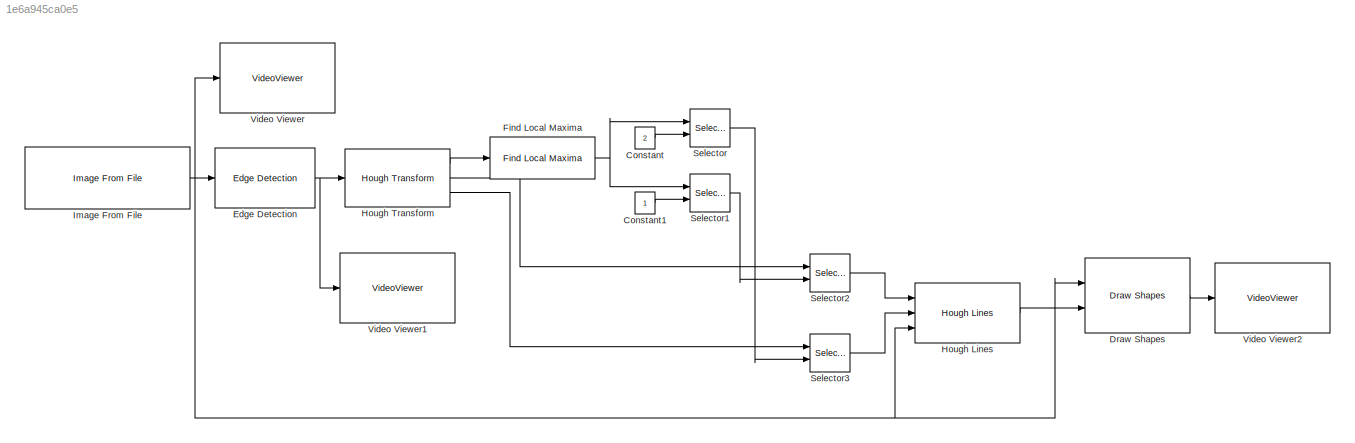
MODEL slx_1e6a945ca0e5
KIND model
CONFIG AbsTol = auto
CONFIG EnableMultiTasking = on
CONFIG FixedStep = auto
CONFIG MaxStep = auto
CONFIG MinStep = auto
CONFIG RelTol = 1e-3
CONFIG SampleTimeConstraint = Unconstrained
CONFIG Solver = FixedStepDiscrete
CONFIG SolverName = FixedStepDiscrete
CONFIG StartTime = 0.0
CONFIG StopTime = 0
BLOCK [Constant] Constant
  Value = 2
BLOCK [Constant] Constant1
BLOCK [Reference] Draw Shapes  REF=visiontextngfix/Draw Shapes
  Ports = [2, 1]
  SourceBlock = visiontextngfix/Draw Shapes
  SourceProductBaseCode = VP
  SourceProductName = Computer Vision System Toolbox
  SourceType = Draw Shapes
BLOCK [Reference] Edge Detection  REF=visionanalysis/Edge Detection
  Ports = [1, 1]
  SourceBlock = visionanalysis/Edge Detection
  SourceProductBaseCode = VP
  SourceProductName = Computer Vision System Toolbox
  SourceType = Edge Detection
BLOCK [Reference] Find Local Maxima  REF=visionstatistics/Find Local Maxima
  Ports = [1, 1]
  SourceBlock = visionstatistics/Find Local Maxima
  SourceProductBaseCode = VP
  SourceProductName = Computer Vision System Toolbox
  SourceType = Find Local Maxima
BLOCK [Reference] Hough Lines  REF=visiontransforms/Hough Lines
  Ports = [3, 1]
  SourceBlock = visiontransforms/Hough Lines
  SourceProductBaseCode = VP
  SourceProductName = Computer Vision System Toolbox
  SourceType = Hough Lines
BLOCK [Reference] Hough Transform  REF=visiontransforms/Hough Transform
  Ports = [1, 3]
  SourceBlock = visiontransforms/Hough Transform
  SourceProductBaseCode = VP
  SourceProductName = Computer Vision System Toolbox
  SourceType = Hough Transform
BLOCK [Reference] Image From File  REF=visionsources/Image From File
  Ports = [0, 1]
  SourceBlock = visionsources/Image From File
  SourceProductBaseCode = VP
  SourceProductName = Computer Vision System Toolbox
  SourceType = Image From File
  Tag = vipblks_nd
BLOCK [Selector] Selector
  IndexOptions = Index vector (port)
  Indices = 1
  InputPortWidth = 2
  OutputSizes = 1
  Ports = [2, 1]
BLOCK [Selector] Selector1
  IndexOptions = Index vector (port)
  Indices = 0
  InputPortWidth = 2
  OutputSizes = 1
  Ports = [2, 1]
BLOCK [Selector] Selector2
  IndexOptions = Select all,Index vector (port)
  Indices = [1 3],1
  InputPortWidth = 3
  NumberOfDimensions = 2
  OutputSizes = 1,1
  Ports = [2, 1]
BLOCK [Selector] Selector3
  IndexOptions = Select all,Index vector (port)
  Indices = [1 3],1
  InputPortWidth = 3
  NumberOfDimensions = 2
  OutputSizes = 1,1
  Ports = [2, 1]
BLOCK [VideoViewer] Video Viewer
  FigPos = [103 578 410 300]
  Ports = [1]
  ScopeSpecificationString = vipscopes.VideoViewerScopeCfg('CurrentConfiguration', extmgr.ConfigurationSet(extmgr.Configuration('Core','General UI',true,'MessageLogAutoOpenMode','for warn/fail messages','ShowSaveConfigSet',true,'FigureProperties',struct('ColorMap',[0 0 0;0.00392156862745098 0.00392156862745098 0.00392156862745098;0.00784313725490196 0.00784313725490196 0.00784313725490196;0.0117647058823529 0.0117647058823529...<+14956ch>
  colormapValue = gray(256)
BLOCK [VideoViewer] Video Viewer1
  FigPos = [528 577 410 300]
  Ports = [1]
  ScopeSpecificationString = vipscopes.VideoViewerScopeCfg('CurrentConfiguration', extmgr.ConfigurationSet(extmgr.Configuration('Core','General UI',true,'MessageLogAutoOpenMode','for warn/fail messages','ShowSaveConfigSet',true,'FigureProperties',struct('ColorMap',[0 0 0;0.00392156862745098 0.00392156862745098 0.00392156862745098;0.00784313725490196 0.00784313725490196 0.00784313725490196;0.0117647058823529 0.0117647058823529...<+14956ch>
  colormapValue = gray(256)
BLOCK [VideoViewer] Video Viewer2
  FigPos = [871 576 410 300]
  Ports = [1]
  ScopeSpecificationString = vipscopes.VideoViewerScopeCfg('CurrentConfiguration', extmgr.ConfigurationSet(extmgr.Configuration('Core','General UI',true,'ShowSaveConfigSet',true,'FigureProperties',struct('ColorMap',[0 0 0;0.00392156862745098 0.00392156862745098 0.00392156862745098;0.00784313725490196 0.00784313725490196 0.00784313725490196;0.0117647058823529 0.0117647058823529 0.0117647058823529;0.0156862745098039 0.015686274...<+14956ch>
  colormapValue = gray(256)
LINE Constant1:1 -> Selector1:2
LINE Constant:1 -> Selector:2
LINE Draw Shapes:1 -> Video Viewer2:1
NET Edge Detection:1 -> Hough Transform:1, Video Viewer1:1
NET Find Local Maxima:1 -> Selector1:1, Selector:1
LINE Hough Lines:1 -> Draw Shapes:2
LINE Hough Transform:1 -> Find Local Maxima:1
LINE Hough Transform:2 -> Selector2:1
LINE Hough Transform:3 -> Selector3:1
NET Image From File:1 -> Draw Shapes:1, Edge Detection:1, Hough Lines:3, Video Viewer:1
LINE Selector1:1 -> Selector2:2
LINE Selector2:1 -> Hough Lines:1
LINE Selector3:1 -> Hough Lines:2
LINE Selector:1 -> Selector3:2
note: NET lines group one-source signal fan-out (src -> all destinations, sorted); 1:1 wires keep LINE
